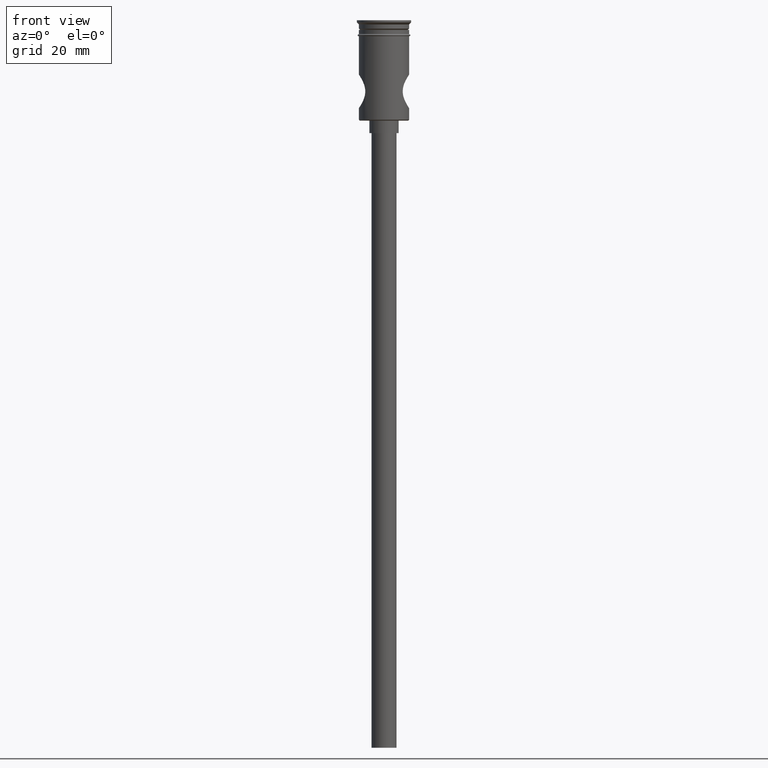
[diagram: clean part render]
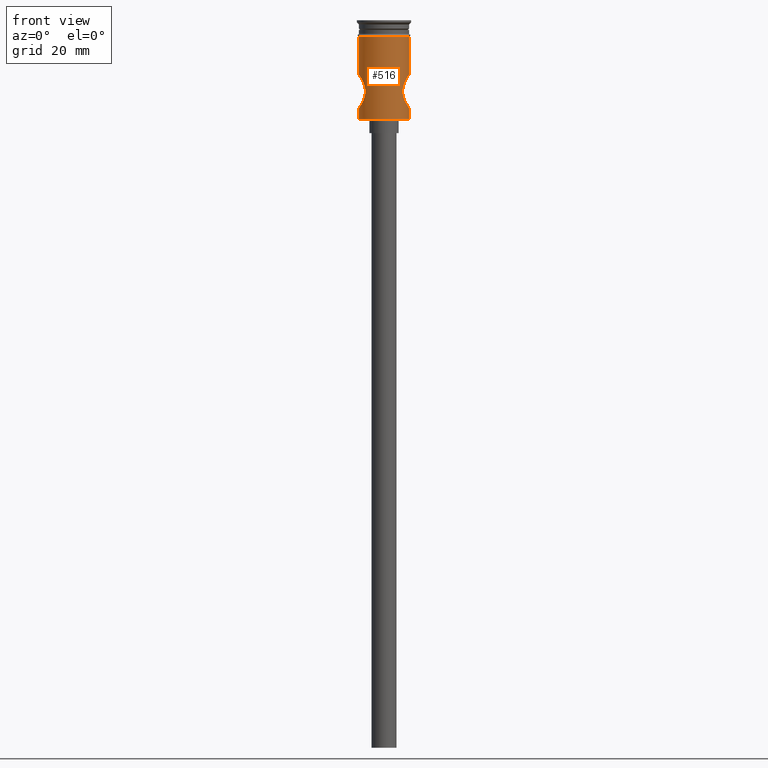
[diagram: same view with one face highlighted and labeled with its STEP entity id]
A machine part, front view. The second image highlights one B-rep face of the part: STEP entity #516.
In plain terms, the highlighted cylindrical surface (edge-blend (fillet) strip) has radius 6 mm, axis along (-0, -0, 1).
Its self-contained STEP definition (entity closure, byte-faithful):
#5 = VECTOR ( 'NONE', #272, 1000.000000000000000 ) ;
#9 = EDGE_CURVE ( 'NONE', #439, #923, #421, .T. ) ;
#49 = CARTESIAN_POINT ( 'NONE',  ( 5.999999999999997335, 0.000000000000000000, -21.00000000000000355 ) ) ;
#50 = CARTESIAN_POINT ( 'NONE',  ( 5.383857059222176389, -2.656136703825480172, -20.00147985586160360 ) ) ;
#56 = CARTESIAN_POINT ( 'NONE',  ( 4.812980838828969432, -3.584886833645908766, -15.20686804412652116 ) ) ;
#58 = CARTESIAN_POINT ( 'NONE',  ( -5.649252793255032934, -2.034506580944978271, -20.45365450866940193 ) ) ;
#66 = VERTEX_POINT ( 'NONE', #1155 ) ;
#68 = DIRECTION ( 'NONE',  ( -0.000000000000000000, -0.000000000000000000, 1.000000000000000000 ) ) ;
#70 = CARTESIAN_POINT ( 'NONE',  ( -5.909734172871756286, -1.070628588321905106, -13.13649990372544707 ) ) ;
#76 = CARTESIAN_POINT ( 'NONE',  ( 4.695721265758812102, -3.735538961856250673, -15.56388279734573210 ) ) ;
#82 = CARTESIAN_POINT ( 'NONE',  ( 5.999999999999997335, 0.000000000000000000, -21.00000000000000355 ) ) ;
#96 = EDGE_CURVE ( 'NONE', #700, #172, #1051, .T. ) ;
#97 = DIRECTION ( 'NONE',  ( 1.000000000000000000, 0.000000000000000000, 0.000000000000000000 ) ) ;
#129 = AXIS2_PLACEMENT_3D ( 'NONE', #413, #202, #97 ) ;
#142 = CARTESIAN_POINT ( 'NONE',  ( 0.000000000000000000, 0.000000000000000000, 0.000000000000000000 ) ) ;
#148 = CARTESIAN_POINT ( 'NONE',  ( 5.094941177298610846, -3.173493986384484877, -19.44836001449218799 ) ) ;
#154 = CARTESIAN_POINT ( 'NONE',  ( 5.857856019569841699, -1.322596816769211481, -13.21570480751898025 ) ) ;
#155 = CARTESIAN_POINT ( 'NONE',  ( -4.658800709564933307, -3.783111596241941932, -18.32471878455887548 ) ) ;
#162 = CARTESIAN_POINT ( 'NONE',  ( -5.191849950367998012, -3.014242200430727436, -19.64164800058794214 ) ) ;
#170 = CARTESIAN_POINT ( 'NONE',  ( -5.383168773068585544, -2.657528158016941422, -20.00025070472698729 ) ) ;
#172 = VERTEX_POINT ( 'NONE', #207 ) ;
#174 = CARTESIAN_POINT ( 'NONE',  ( 5.999999999999997335, -0.2693226933892790553, -13.00000000000000000 ) ) ;
#197 = CARTESIAN_POINT ( 'NONE',  ( 5.478456530086701193, -2.457412205291197083, -20.16652278763330486 ) ) ;
#202 = DIRECTION ( 'NONE',  ( -0.000000000000000000, -0.000000000000000000, 1.000000000000000000 ) ) ;
#204 = EDGE_CURVE ( 'NONE', #357, #993, #214, .T. ) ;
#207 = CARTESIAN_POINT ( 'NONE',  ( 6.000000000000000000, 0.000000000000000000, -3.799999999999998490 ) ) ;
#211 = CARTESIAN_POINT ( 'NONE',  ( -6.000000000000000000, 7.347880794884119736E-16, -3.799999999999998490 ) ) ;
#214 = B_SPLINE_CURVE_WITH_KNOTS ( 'NONE', 3,
 ( #1324, #1431, #1076, #387, #963, #832, #58, #1195, #170, #162, #391, #622, #1305, #155, #854, #613, #1318, #1423, #263, #1438, #496, #271, #1209, #397, #288, #845, #955, #720, #839, #1081, #1312, #279, #70, #726, #1201, #507, #734, #607 ),
 .UNSPECIFIED., .F., .F.,
 ( 4, 2, 2, 2, 2, 2, 2, 2, 2, 2, 2, 2, 2, 2, 2, 2, 2, 2, 4 ),
 ( 0.000000000000000000, 0.0008079931812297209146, 0.001615986362459441612, 0.002423979543689161985, 0.003231972724918882791, 0.004039965906148603597, 0.004847959087378323970, 0.005655952268608045209, 0.006059948859222905396, 0.006463945449837766449, 0.007271938631067487689, 0.008079931812297208929, 0.008887924993526937975, 0.009695918174756667021, 0.01050391135598639780, 0.01131190453721612511, 0.01211989771844585589, 0.01252389430906072042, 0.01292789089967558668 ),
 .UNSPECIFIED. ) ;
#226 = ORIENTED_EDGE ( 'NONE', *, *, #909, .F. ) ;
#243 = DIRECTION ( 'NONE',  ( -0.000000000000000000, -0.000000000000000000, 1.000000000000000000 ) ) ;
#257 = CARTESIAN_POINT ( 'NONE',  ( -5.999999999999997335, 7.347880794884116778E-16, 0.000000000000000000 ) ) ;
#263 = CARTESIAN_POINT ( 'NONE',  ( -4.472242783135714106, -3.999880562432159614, -17.13916142668633213 ) ) ;
#271 = CARTESIAN_POINT ( 'NONE',  ( -4.589371484154255221, -3.865580797907776311, -15.93709879797099838 ) ) ;
#272 = DIRECTION ( 'NONE',  ( -0.000000000000000000, -0.000000000000000000, 1.000000000000000000 ) ) ;
#277 = CARTESIAN_POINT ( 'NONE',  ( 4.471969905858021122, -4.000185648662160531, -16.72948623710961868 ) ) ;
#279 = CARTESIAN_POINT ( 'NONE',  ( -5.857601659980625541, -1.323462767520508399, -13.21610827440704661 ) ) ;
#284 = VECTOR ( 'NONE', #68, 1000.000000000000000 ) ;
#285 = CARTESIAN_POINT ( 'NONE',  ( 4.658564655011906197, -3.783396392401491504, -18.32386562586675538 ) ) ;
#288 = CARTESIAN_POINT ( 'NONE',  ( -4.904334778770657266, -3.460699021627381633, -14.97811247933653789 ) ) ;
#291 = CARTESIAN_POINT ( 'NONE',  ( 4.472303672293368670, -3.999812486286545177, -17.27597643780235970 ) ) ;
#304 = CARTESIAN_POINT ( 'NONE',  ( 5.910224399078535917, -1.067455424808947173, -20.86424616908553276 ) ) ;
#357 = VERTEX_POINT ( 'NONE', #657 ) ;
#379 = CARTESIAN_POINT ( 'NONE',  ( 4.594981970458709597, -3.858589710197852796, -15.93762721160692841 ) ) ;
#387 = CARTESIAN_POINT ( 'NONE',  ( -5.910558363407835358, -1.065472474882100284, -20.86475527808674713 ) ) ;
#390 = CARTESIAN_POINT ( 'NONE',  ( 4.903670365680997456, -3.461664301119387943, -14.97966456857568751 ) ) ;
#391 = CARTESIAN_POINT ( 'NONE',  ( -5.092719808373196599, -3.176950723007532229, -19.44358897106424067 ) ) ;
#397 = CARTESIAN_POINT ( 'NONE',  ( -4.813287987224463826, -3.584502662014732888, -15.20585560854699025 ) ) ;
#413 = CARTESIAN_POINT ( 'NONE',  ( 0.000000000000000000, 0.000000000000000000, -3.799999999999998490 ) ) ;
#421 = LINE ( 'NONE', #1402, #5 ) ;
#439 = VERTEX_POINT ( 'NONE', #1170 ) ;
#476 = AXIS2_PLACEMENT_3D ( 'NONE', #142, #592, #688 ) ;
#494 = CARTESIAN_POINT ( 'NONE',  ( 4.659573210257435427, -3.780337466250410561, -15.68607491293215084 ) ) ;
#496 = CARTESIAN_POINT ( 'NONE',  ( -4.496571596818669470, -3.973146032982571185, -16.46466415118837645 ) ) ;
#507 = CARTESIAN_POINT ( 'NONE',  ( -5.995459719443723579, -0.2695386314927114557, -13.00680060135632665 ) ) ;
#512 = CARTESIAN_POINT ( 'NONE',  ( 5.647852088979878005, -2.038182248857269396, -13.54866401616082072 ) ) ;
#516 = ADVANCED_FACE ( 'NONE', ( #917 ), #1050, .T. ) ;
#527 = ORIENTED_EDGE ( 'NONE', *, *, #717, .F. ) ;
#592 = DIRECTION ( 'NONE',  ( -0.000000000000000000, -0.000000000000000000, 1.000000000000000000 ) ) ;
#599 = CARTESIAN_POINT ( 'NONE',  ( -5.999999999999997335, 7.347880794884116778E-16, 0.000000000000000000 ) ) ;
#600 = CARTESIAN_POINT ( 'NONE',  ( 5.192588128681415505, -3.012973207551336685, -19.64309212195294307 ) ) ;
#606 = CARTESIAN_POINT ( 'NONE',  ( 5.476104105474130179, -2.462661959051751115, -13.83753213007001825 ) ) ;
#607 = CARTESIAN_POINT ( 'NONE',  ( -5.999999999999997335, 7.346847929928983029E-16, -13.00000000000000178 ) ) ;
#613 = CARTESIAN_POINT ( 'NONE',  ( -4.521451790501866519, -3.944329598407791071, -17.67822252913731162 ) ) ;
#622 = CARTESIAN_POINT ( 'NONE',  ( -4.904969006695425016, -3.459781783056855797, -19.02337662573054899 ) ) ;
#657 = CARTESIAN_POINT ( 'NONE',  ( -5.999999999999997335, 0.000000000000000000, -21.00000000000000000 ) ) ;
#688 = DIRECTION ( 'NONE',  ( 1.000000000000000000, 0.000000000000000000, 0.000000000000000000 ) ) ;
#700 = VERTEX_POINT ( 'NONE', #1297 ) ;
#704 = B_SPLINE_CURVE_WITH_KNOTS ( 'NONE', 3,
 ( #1085, #174, #1093, #1310, #154, #1422, #512, #606, #1199, #844, #1074, #390, #56, #76, #494, #379, #837, #1068, #277, #291, #975, #824, #285, #852, #1180, #148, #600, #50, #197, #1097, #884, #989, #304, #984, #1460, #82 ),
 .UNSPECIFIED., .F., .F.,
 ( 4, 2, 2, 2, 2, 2, 2, 2, 2, 2, 2, 2, 2, 2, 2, 2, 2, 4 ),
 ( 0.01292789089967558841, 0.01373481658167572013, 0.01454174226367585185, 0.01534866794567598357, 0.01615559362767611529, 0.01696251930967624874, 0.01776944499167637873, 0.01817290783267644372, 0.01857637067367650524, 0.01938329635567663523, 0.02019022203767676174, 0.02099714771967688826, 0.02180407340167701824, 0.02261099908367714129, 0.02341792476567727127, 0.02422485044767740126, 0.02503177612967752430, 0.02583870181167765429 ),
 .UNSPECIFIED. ) ;
#712 = ORIENTED_EDGE ( 'NONE', *, *, #1390, .T. ) ;
#717 = EDGE_CURVE ( 'NONE', #700, #923, #704, .T. ) ;
#720 = CARTESIAN_POINT ( 'NONE',  ( -5.383657517074644794, -2.656633614838566082, -13.99882376761189384 ) ) ;
#726 = CARTESIAN_POINT ( 'NONE',  ( -5.963516332756119809, -0.6739983983561910197, -13.05488329690675897 ) ) ;
#728 = DIRECTION ( 'NONE',  ( -0.000000000000000000, -0.000000000000000000, 1.000000000000000000 ) ) ;
#734 = CARTESIAN_POINT ( 'NONE',  ( -5.999999999999997335, -0.1348394930680405501, -13.00000000000000355 ) ) ;
#748 = VERTEX_POINT ( 'NONE', #211 ) ;
#824 = CARTESIAN_POINT ( 'NONE',  ( 4.590872927876619158, -3.863799755992654461, -18.06881075205812692 ) ) ;
#828 = VECTOR ( 'NONE', #728, 1000.000000000000000 ) ;
#830 = LINE ( 'NONE', #599, #284 ) ;
#832 = CARTESIAN_POINT ( 'NONE',  ( -5.726993910597676596, -1.806673378235915894, -20.57837121075087694 ) ) ;
#837 = CARTESIAN_POINT ( 'NONE',  ( 4.566410052139550757, -3.892191516930989525, -16.06790164049536429 ) ) ;
#839 = CARTESIAN_POINT ( 'NONE',  ( -5.476434227958207224, -2.461837270032277036, -13.83697842493743124 ) ) ;
#844 = CARTESIAN_POINT ( 'NONE',  ( 5.189877563605831412, -3.017637752822130981, -14.36220871751616279 ) ) ;
#845 = CARTESIAN_POINT ( 'NONE',  ( -5.092532074683506771, -3.177271535275487224, -14.55676189133447807 ) ) ;
#849 = AXIS2_PLACEMENT_3D ( 'NONE', #1450, #868, #1205 ) ;
#852 = CARTESIAN_POINT ( 'NONE',  ( 4.815345988703962909, -3.581725270876520373, -18.79943117160749466 ) ) ;
#854 = CARTESIAN_POINT ( 'NONE',  ( -4.591041808995889539, -3.863597314276565164, -18.06934695620069320 ) ) ;
#868 = DIRECTION ( 'NONE',  ( -0.000000000000000000, -0.000000000000000000, 1.000000000000000000 ) ) ;
#884 = CARTESIAN_POINT ( 'NONE',  ( 5.726721313513248646, -1.807412029573764567, -20.57793071042115685 ) ) ;
#909 = EDGE_CURVE ( 'NONE', #66, #357, #830, .T. ) ;
#911 = EDGE_LOOP ( 'NONE', ( #226, #712, #1444, #527, #1216, #1070, #1255, #1164 ) ) ;
#917 = FACE_OUTER_BOUND ( 'NONE', #911, .T. ) ;
#923 = VERTEX_POINT ( 'NONE', #49 ) ;
#932 = CIRCLE ( 'NONE', #849, 5.999999999999997335 ) ;
#955 = CARTESIAN_POINT ( 'NONE',  ( -5.191140967328530920, -3.015547360259485998, -14.35969034782403853 ) ) ;
#959 = CIRCLE ( 'NONE', #129, 6.000000000000000000 ) ;
#963 = CARTESIAN_POINT ( 'NONE',  ( -5.857462785930374949, -1.323879775164644057, -20.78366906037869910 ) ) ;
#975 = CARTESIAN_POINT ( 'NONE',  ( 4.497954016143989264, -3.971583117973676025, -17.54574033674490607 ) ) ;
#984 = CARTESIAN_POINT ( 'NONE',  ( 5.981315622377779029, -0.5422886287917132453, -20.97212570072115057 ) ) ;
#989 = CARTESIAN_POINT ( 'NONE',  ( 5.856852607584091430, -1.326405963621355211, -20.78272040109924745 ) ) ;
#993 = VERTEX_POINT ( 'NONE', #1078 ) ;
#1043 = CARTESIAN_POINT ( 'NONE',  ( 5.999999999999997335, 0.000000000000000000, 0.000000000000000000 ) ) ;
#1050 = CYLINDRICAL_SURFACE ( 'NONE', #476, 5.999999999999997335 ) ;
#1051 = LINE ( 'NONE', #1043, #1265 ) ;
#1068 = CARTESIAN_POINT ( 'NONE',  ( 4.496976719000949529, -3.972684566356398328, -16.46183091757619721 ) ) ;
#1070 = ORIENTED_EDGE ( 'NONE', *, *, #1134, .F. ) ;
#1074 = CARTESIAN_POINT ( 'NONE',  ( 5.092437400807709125, -3.177449308448083709, -14.55690956341038245 ) ) ;
#1076 = CARTESIAN_POINT ( 'NONE',  ( -5.981377723958397397, -0.5413430384848010313, -20.97221760090189235 ) ) ;
#1078 = CARTESIAN_POINT ( 'NONE',  ( -5.999999999999997335, 7.346847929928983029E-16, -13.00000000000000178 ) ) ;
#1081 = CARTESIAN_POINT ( 'NONE',  ( -5.647456945233588321, -2.039167636317594123, -13.54932708310013645 ) ) ;
#1085 = CARTESIAN_POINT ( 'NONE',  ( 5.999999999999997335, 1.032865049536733409E-19, -13.00000000000000178 ) ) ;
#1093 = CARTESIAN_POINT ( 'NONE',  ( 5.981295349059708499, -0.5428679769166553370, -13.02790298971887850 ) ) ;
#1097 = CARTESIAN_POINT ( 'NONE',  ( 5.649709804834208704, -2.033012498713171468, -20.45435978024744017 ) ) ;
#1134 = EDGE_CURVE ( 'NONE', #748, #172, #959, .T. ) ;
#1155 = CARTESIAN_POINT ( 'NONE',  ( -5.999999999999997335, 7.347880794884116778E-16, -23.80000000000000782 ) ) ;
#1164 = ORIENTED_EDGE ( 'NONE', *, *, #204, .F. ) ;
#1170 = CARTESIAN_POINT ( 'NONE',  ( 5.999999999999997335, 0.000000000000000000, -23.80000000000000782 ) ) ;
#1180 = CARTESIAN_POINT ( 'NONE',  ( 4.905092851350609351, -3.459704293921745055, -19.02385203036241634 ) ) ;
#1195 = CARTESIAN_POINT ( 'NONE',  ( -5.476259375248749173, -2.462490082215232690, -20.16276605017704782 ) ) ;
#1199 = CARTESIAN_POINT ( 'NONE',  ( 5.381440153112923674, -2.661027735845788555, -14.00283269631730754 ) ) ;
#1201 = CARTESIAN_POINT ( 'NONE',  ( -5.977293684551374220, -0.5386543696670904602, -13.03412758888619116 ) ) ;
#1205 = DIRECTION ( 'NONE',  ( -1.000000000000000000, 0.000000000000000000, 0.000000000000000000 ) ) ;
#1209 = CARTESIAN_POINT ( 'NONE',  ( -4.655957912614353766, -3.786615440986035086, -15.68502588106870199 ) ) ;
#1216 = ORIENTED_EDGE ( 'NONE', *, *, #96, .T. ) ;
#1255 = ORIENTED_EDGE ( 'NONE', *, *, #1315, .F. ) ;
#1265 = VECTOR ( 'NONE', #243, 1000.000000000000000 ) ;
#1293 = LINE ( 'NONE', #257, #828 ) ;
#1297 = CARTESIAN_POINT ( 'NONE',  ( 5.999999999999997335, 1.032865049536733409E-19, -13.00000000000000178 ) ) ;
#1305 = CARTESIAN_POINT ( 'NONE',  ( -4.815777407978871771, -3.581151401136684953, -18.80060207983888887 ) ) ;
#1310 = CARTESIAN_POINT ( 'NONE',  ( 5.909894408226809226, -1.069461442341119284, -13.13625666965422312 ) ) ;
#1312 = CARTESIAN_POINT ( 'NONE',  ( -5.726539468168462044, -1.808257897405587622, -13.42234802356430201 ) ) ;
#1315 = EDGE_CURVE ( 'NONE', #993, #748, #1293, .T. ) ;
#1318 = CARTESIAN_POINT ( 'NONE',  ( -4.503329929757906136, -3.964891535778144682, -17.54583673630848040 ) ) ;
#1324 = CARTESIAN_POINT ( 'NONE',  ( -5.999999999999997335, 0.000000000000000000, -21.00000000000000000 ) ) ;
#1390 = EDGE_CURVE ( 'NONE', #66, #439, #932, .T. ) ;
#1402 = CARTESIAN_POINT ( 'NONE',  ( 5.999999999999997335, 0.000000000000000000, 0.000000000000000000 ) ) ;
#1422 = CARTESIAN_POINT ( 'NONE',  ( 5.726042320256659046, -1.810021776766354673, -13.42313354859388497 ) ) ;
#1423 = CARTESIAN_POINT ( 'NONE',  ( -4.478683235531862650, -3.992711086781060015, -17.27669624262845005 ) ) ;
#1431 = CARTESIAN_POINT ( 'NONE',  ( -5.999999999999997335, -0.2736934833754732788, -20.99999999999999645 ) ) ;
#1438 = CARTESIAN_POINT ( 'NONE',  ( -4.471926352484669742, -4.000234342895624629, -16.73210661165612478 ) ) ;
#1444 = ORIENTED_EDGE ( 'NONE', *, *, #9, .T. ) ;
#1450 = CARTESIAN_POINT ( 'NONE',  ( 0.000000000000000000, 0.000000000000000000, -23.80000000000000782 ) ) ;
#1460 = CARTESIAN_POINT ( 'NONE',  ( 5.999999999999997335, -0.2733318867810513031, -21.00000000000000355 ) ) ;